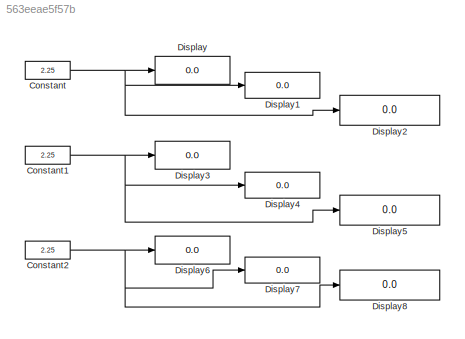
MODEL slx_563eeae5f57b
KIND model
CONFIG AbsTol = auto
CONFIG FixedStep = 1
CONFIG MaxStep = auto
CONFIG MinStep = auto
CONFIG RelTol = 1e-3
CONFIG SampleTimeConstraint = Unconstrained
CONFIG Solver = FixedStepDiscrete
CONFIG SolverMode = Auto
CONFIG SolverName = FixedStepDiscrete
CONFIG StartTime = 0.0
CONFIG StopTime = 0
BLOCK [Constant] Constant
  AttributesFormatString = DataType = %<OutDataTypeStr>
  OutDataTypeStr = fixdt(1,8,0)
  SampleTime = -1
  Value = 2.25
BLOCK [Constant] Constant1
  AttributesFormatString = DataType = %<OutDataTypeStr>
  OutDataTypeStr = fixdt(1,8,1)
  SampleTime = -1
  Value = 2.25
BLOCK [Constant] Constant2
  AttributesFormatString = DataType = %<OutDataTypeStr>
  OutDataTypeStr = fixdt(1,8,2)
  SampleTime = -1
  Value = 2.25
BLOCK [Display] Display
  AttributesFormatString = Format = %<Format>
  Decimation = 1
  Format = long
  Ports = [1]
BLOCK [Display] Display1
  AttributesFormatString = Format = %<Format>
  Decimation = 1
  Format = hex (Stored Integer)
  Ports = [1]
BLOCK [Display] Display2
  AttributesFormatString = Format = %<Format>
  Decimation = 1
  Format = binary (Stored Integer)
  Ports = [1]
BLOCK [Display] Display3
  AttributesFormatString = Format = %<Format>
  Decimation = 1
  Format = long
  Ports = [1]
BLOCK [Display] Display4
  AttributesFormatString = Format = %<Format>
  Decimation = 1
  Format = hex (Stored Integer)
  Ports = [1]
BLOCK [Display] Display5
  AttributesFormatString = Format = %<Format>
  Decimation = 1
  Format = binary (Stored Integer)
  Ports = [1]
BLOCK [Display] Display6
  AttributesFormatString = Format = %<Format>
  Decimation = 1
  Format = long
  Ports = [1]
BLOCK [Display] Display7
  AttributesFormatString = Format = %<Format>
  Decimation = 1
  Format = hex (Stored Integer)
  Ports = [1]
BLOCK [Display] Display8
  AttributesFormatString = Format = %<Format>
  Decimation = 1
  Format = binary (Stored Integer)
  Ports = [1]
NET Constant1:1 -> Display3:1, Display4:1, Display5:1
NET Constant2:1 -> Display6:1, Display7:1, Display8:1
NET Constant:1 -> Display1:1, Display2:1, Display:1
note: NET lines group one-source signal fan-out (src -> all destinations, sorted); 1:1 wires keep LINE
